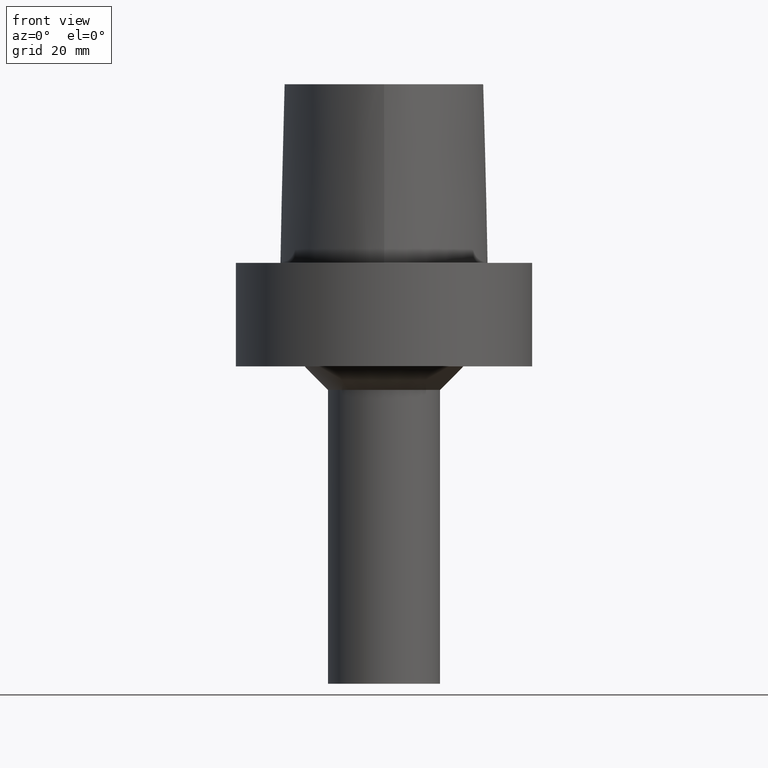
[diagram: clean part render]
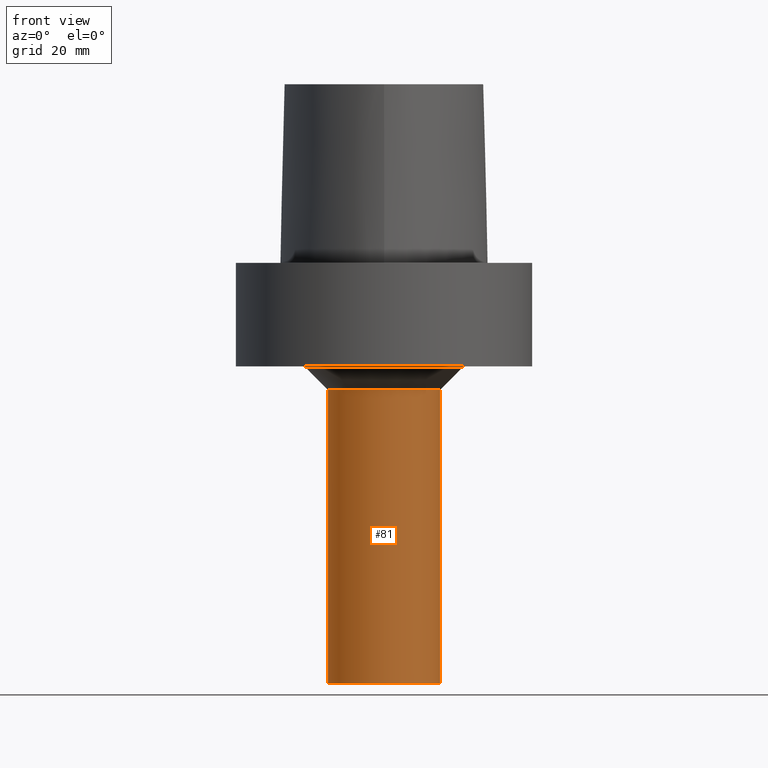
[diagram: same view with one face highlighted and labeled with its STEP entity id]
A machine part, front view. The second image highlights one B-rep face of the part: STEP entity #81.
In plain terms, the highlighted cylindrical surface (bore or boss wall) has radius 12 mm, axis along (-0, -0, 1).
Its self-contained STEP definition (entity closure, byte-faithful):
#81=ADVANCED_FACE('',(#100,#101),#102,.T.);
#100=FACE_BOUND('',#263,.T.);
#101=FACE_BOUND('',#264,.T.);
#102=CYLINDRICAL_SURFACE('',#265,12.0);
#263=EDGE_LOOP('',(#303));
#264=EDGE_LOOP('',(#304));
#265=AXIS2_PLACEMENT_3D('',#305,#306,#307);
#303=ORIENTED_EDGE('',*,*,#335,.F.);
#304=ORIENTED_EDGE('',*,*,#334,.T.);
#305=CARTESIAN_POINT('',(3.56678380251667E-015,7.13356760503333E-015,-58.25));
#306=DIRECTION('',(-6.12323399573677E-017,-1.22464679914735E-016,1.0));
#307=DIRECTION('',(-1.23259516440783E-032,1.0,1.22464679914735E-016));
#334=EDGE_CURVE('',#354,#354,#355,.T.);
#335=EDGE_CURVE('',#356,#356,#357,.T.);
#354=VERTEX_POINT('',#443);
#355=CIRCLE('',#444,12.0);
#356=VERTEX_POINT('',#445);
#357=CIRCLE('',#446,12.0);
#443=CARTESIAN_POINT('',(1.65327317884893E-015,12.0,-27.0));
#444=AXIS2_PLACEMENT_3D('',#461,#462,#463);
#445=CARTESIAN_POINT('',(5.48029442618441E-015,12.0,-89.5));
#446=AXIS2_PLACEMENT_3D('',#464,#465,#466);
#461=CARTESIAN_POINT('',(1.65327317884893E-015,3.30654635769785E-015,-27.0));
#462=DIRECTION('',(6.12323399573677E-017,1.22464679914735E-016,-1.0));
#463=DIRECTION('',(-1.23259516440783E-032,1.0,1.22464679914735E-016));
#464=CARTESIAN_POINT('',(5.48029442618441E-015,1.09605888523688E-014,-89.5));
#465=DIRECTION('',(6.12323399573677E-017,1.22464679914735E-016,-1.0));
#466=DIRECTION('',(-1.23259516440783E-032,1.0,1.22464679914735E-016));